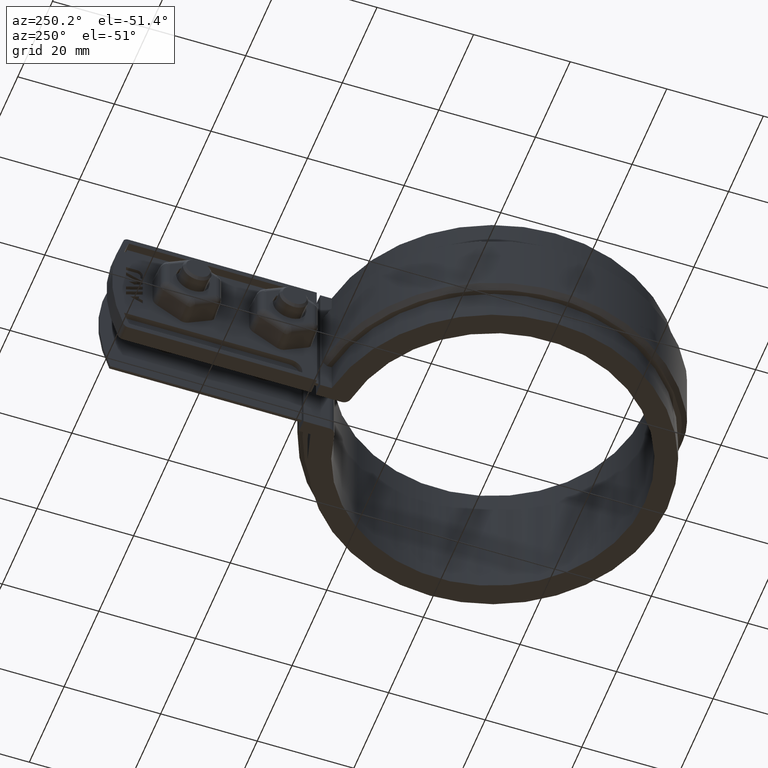
[diagram: clean part render]
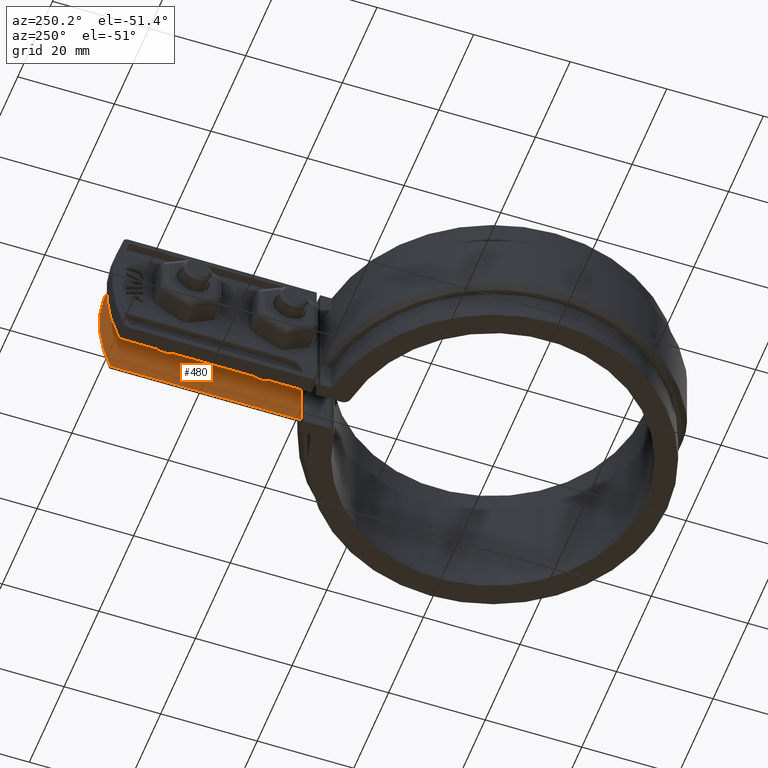
[diagram: same view with one face highlighted and labeled with its STEP entity id]
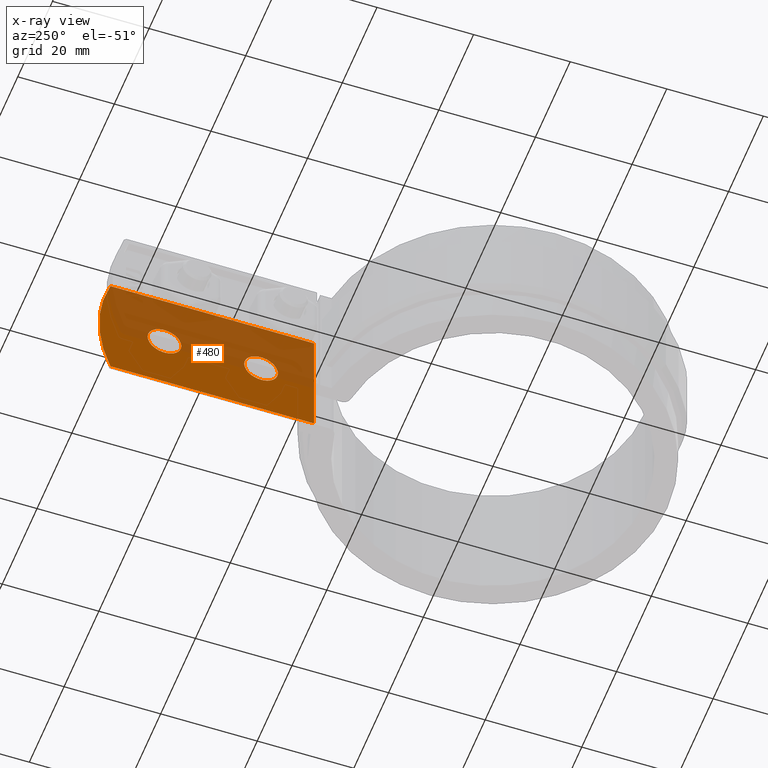
[diagram: x-ray of the same camera — body ghosted, the highlighted face saturated]
A machine part, auxiliary view. The second image highlights one B-rep face of the part: STEP entity #480.
The next image is the same camera in x-ray: the body ghosted, the highlighted face saturated — about 52% of this face is hidden behind the body in this view.
In plain terms, the highlighted planar face has unit normal (-1, 0, 0).
Its self-contained STEP definition (entity closure, byte-faithful):
#480 = ADVANCED_FACE( '', ( #851, #852, #853 ), #854, .T. );
#851 = FACE_BOUND( '', #1603, .T. );
#852 = FACE_OUTER_BOUND( '', #1604, .T. );
#853 = FACE_BOUND( '', #1605, .T. );
#854 = PLANE( '', #1606 );
#1603 = EDGE_LOOP( '', ( #3497 ) );
#1604 = EDGE_LOOP( '', ( #3498, #3499, #3500, #3501 ) );
#1605 = EDGE_LOOP( '', ( #3502 ) );
#1606 = AXIS2_PLACEMENT_3D( '', #3503, #3504, #3505 );
#3497 = ORIENTED_EDGE( '', *, *, #6917, .T. );
#3498 = ORIENTED_EDGE( '', *, *, #6834, .T. );
#3499 = ORIENTED_EDGE( '', *, *, #6918, .T. );
#3500 = ORIENTED_EDGE( '', *, *, #6919, .F. );
#3501 = ORIENTED_EDGE( '', *, *, #6920, .F. );
#3502 = ORIENTED_EDGE( '', *, *, #6921, .T. );
#3503 = CARTESIAN_POINT( '', ( 4.50000000000000, 35.4145450344912, 0.000000000000000 ) );
#3504 = DIRECTION( '', ( -1.00000000000000, 6.12303176911189E-017, 0.000000000000000 ) );
#3505 = DIRECTION( '', ( 6.12303176911189E-017, 1.00000000000000, 0.000000000000000 ) );
#6834 = EDGE_CURVE( '', #7802, #7800, #7803, .T. );
#6917 = EDGE_CURVE( '', #7948, #7948, #7949, .F. );
#6918 = EDGE_CURVE( '', #7800, #7950, #7951, .T. );
#6919 = EDGE_CURVE( '', #7952, #7950, #7953, .T. );
#6920 = EDGE_CURVE( '', #7802, #7952, #7954, .T. );
#6921 = EDGE_CURVE( '', #7955, #7955, #7956, .F. );
#7800 = VERTEX_POINT( '', #9331 );
#7802 = VERTEX_POINT( '', #9334 );
#7803 = LINE( '', #9335, #9336 );
#7948 = VERTEX_POINT( '', #10094 );
#7949 = CIRCLE( '', #10095, 3.50000000000000 );
#7950 = VERTEX_POINT( '', #10096 );
#7951 = CIRCLE( '', #10097, 35.0000000000000 );
#7952 = VERTEX_POINT( '', #10098 );
#7953 = LINE( '', #10099, #10100 );
#7954 = LINE( '', #10101, #10102 );
#7955 = VERTEX_POINT( '', #10103 );
#7956 = CIRCLE( '', #10104, 3.50000000000000 );
#9331 = CARTESIAN_POINT( '', ( 4.50000000000001, 77.5853584785258, 0.000000000000000 ) );
#9334 = CARTESIAN_POINT( '', ( 4.50000000000000, 35.4145450344912, 0.000000000000000 ) );
#9335 = CARTESIAN_POINT( '', ( 4.50000000000000, 35.4145450344912, 0.000000000000000 ) );
#9336 = VECTOR( '', #13121, 1000.00000000000 );
#10094 = CARTESIAN_POINT( '', ( 4.50000000000000, 62.8936164019707, -12.5000000000000 ) );
#10095 = AXIS2_PLACEMENT_3D( '', #13217, #13218, #13219 );
#10096 = CARTESIAN_POINT( '', ( 4.50000000000001, 77.5853584785258, -25.0000000000000 ) );
#10097 = AXIS2_PLACEMENT_3D( '', #13220, #13221, #13222 );
#10098 = CARTESIAN_POINT( '', ( 4.50000000000000, 35.4145450344912, -25.0000000000000 ) );
#10099 = CARTESIAN_POINT( '', ( 4.50000000000000, 35.4145450344912, -25.0000000000000 ) );
#10100 = VECTOR( '', #13223, 1000.00000000000 );
#10101 = CARTESIAN_POINT( '', ( 4.50000000000000, 35.4145450344912, 0.000000000000000 ) );
#10102 = VECTOR( '', #13224, 1000.00000000000 );
#10103 = CARTESIAN_POINT( '', ( 4.50000000000000, 42.8936164019707, -12.5000000000000 ) );
#10104 = AXIS2_PLACEMENT_3D( '', #13225, #13226, #13227 );
#13121 = DIRECTION( '', ( 6.12303176911189E-017, 1.00000000000000, 0.000000000000000 ) );
#13217 = CARTESIAN_POINT( '', ( 4.50000000000000, 66.3936164019707, -12.5000000000000 ) );
#13218 = DIRECTION( '', ( -1.00000000000000, 6.12303176911189E-017, 0.000000000000000 ) );
#13219 = DIRECTION( '', ( -6.12303176911189E-017, -1.00000000000000, 0.000000000000000 ) );
#13220 = CARTESIAN_POINT( '', ( 4.50000000000000, 44.8936164019708, -12.4999999999999 ) );
#13221 = DIRECTION( '', ( -1.00000000000000, 6.12303176911189E-017, 0.000000000000000 ) );
#13222 = DIRECTION( '', ( -6.12303176911189E-017, -1.00000000000000, 0.000000000000000 ) );
#13223 = DIRECTION( '', ( 6.12303176911189E-017, 1.00000000000000, 0.000000000000000 ) );
#13224 = DIRECTION( '', ( 0.000000000000000, 0.000000000000000, -1.00000000000000 ) );
#13225 = CARTESIAN_POINT( '', ( 4.50000000000000, 46.3936164019707, -12.5000000000000 ) );
#13226 = DIRECTION( '', ( -1.00000000000000, 6.12303176911189E-017, 0.000000000000000 ) );
#13227 = DIRECTION( '', ( -6.12303176911189E-017, -1.00000000000000, 0.000000000000000 ) );